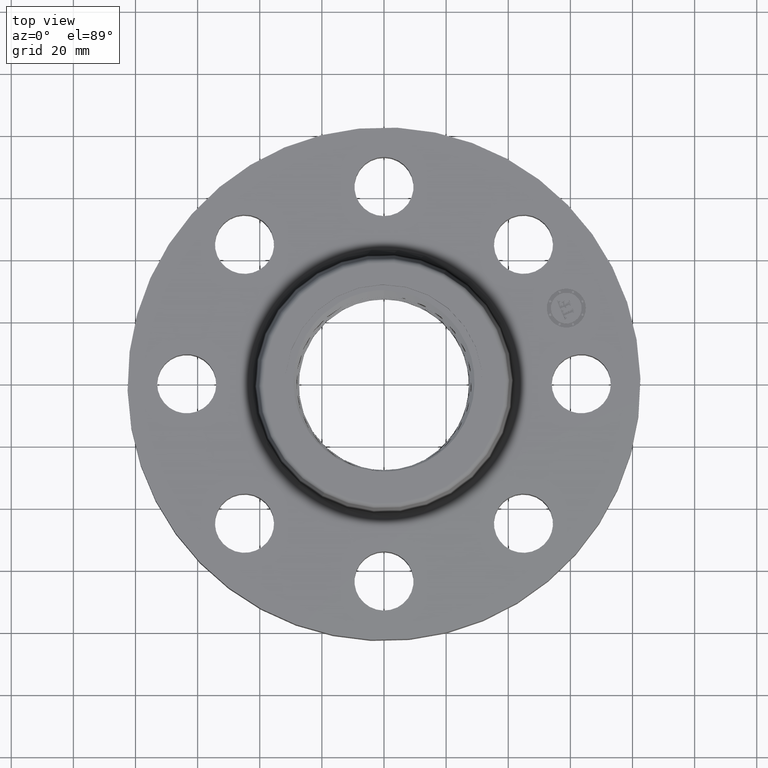
[diagram: clean part render]
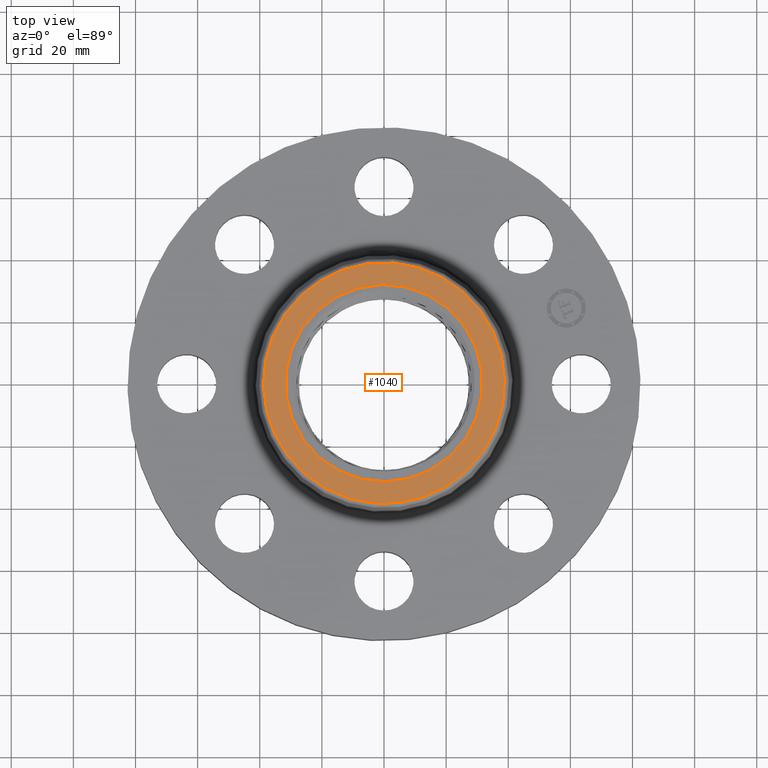
[diagram: same view with one face highlighted and labeled with its STEP entity id]
A machine part, top view. The second image highlights one B-rep face of the part: STEP entity #1040.
In plain terms, the highlighted planar face has unit normal (0, 0, -1).
Its self-contained STEP definition (entity closure, byte-faithful):
#461=AXIS2_PLACEMENT_3D('Circle Axis2P3D',#459,#460,$) ;
#487=AXIS2_PLACEMENT_3D('Circle Axis2P3D',#485,#486,$) ;
#697=AXIS2_PLACEMENT_3D('Circle Axis2P3D',#695,#696,$) ;
#716=AXIS2_PLACEMENT_3D('Circle Axis2P3D',#714,#715,$) ;
#1030=AXIS2_PLACEMENT_3D('Plane Axis2P3D',#1027,#1028,#1029) ;
#459=CARTESIAN_POINT('Axis2P3D Location',(0.,0.,1.25000000001)) ;
#463=CARTESIAN_POINT('Vertex',(-0.599281923258,1.09697820237,1.25000000001)) ;
#465=CARTESIAN_POINT('Vertex',(0.599281923258,-1.09697820237,1.25000000001)) ;
#485=CARTESIAN_POINT('Axis2P3D Location',(0.,0.,1.25000000001)) ;
#692=CARTESIAN_POINT('Vertex',(0.732116429449,1.34013013497,1.25000000001)) ;
#695=CARTESIAN_POINT('Axis2P3D Location',(0.,0.,1.25000000001)) ;
#699=CARTESIAN_POINT('Vertex',(-0.732116429449,-1.34013013497,1.25000000001)) ;
#714=CARTESIAN_POINT('Axis2P3D Location',(0.,0.,1.25000000001)) ;
#1027=CARTESIAN_POINT('Axis2P3D Location',(0.,1.52707015062,1.25000000001)) ;
#460=DIRECTION('Axis2P3D Direction',(0.,0.,0.0393700787402)) ;
#486=DIRECTION('Axis2P3D Direction',(0.,0.,0.0393700787402)) ;
#696=DIRECTION('Axis2P3D Direction',(0.,0.,-0.0393700787402)) ;
#715=DIRECTION('Axis2P3D Direction',(0.,0.,-0.0393700787402)) ;
#1028=DIRECTION('Axis2P3D Direction',(0.,0.,-0.0393700787402)) ;
#1029=DIRECTION('Axis2P3D XDirection',(0.0393700787402,0.,0.)) ;
#1033=ORIENTED_EDGE('',*,*,#701,.F.) ;
#1034=ORIENTED_EDGE('',*,*,#718,.F.) ;
#1037=ORIENTED_EDGE('',*,*,#467,.T.) ;
#1038=ORIENTED_EDGE('',*,*,#489,.T.) ;
#1039=FACE_BOUND('',#1036,.T.) ;
#1040=ADVANCED_FACE('PartBody',(#1035,#1039),#1031,.F.) ;
#462=CIRCLE('generated circle',#461,1.25000000001) ;
#488=CIRCLE('generated circle',#487,1.25000000001) ;
#698=CIRCLE('generated circle',#697,1.52707015062) ;
#717=CIRCLE('generated circle',#716,1.52707015062) ;
#467=EDGE_CURVE('',#464,#466,#462,.F.) ;
#489=EDGE_CURVE('',#466,#464,#488,.F.) ;
#701=EDGE_CURVE('',#693,#700,#698,.T.) ;
#718=EDGE_CURVE('',#700,#693,#717,.T.) ;
#1032=EDGE_LOOP('',(#1033,#1034)) ;
#1036=EDGE_LOOP('',(#1037,#1038)) ;
#1035=FACE_OUTER_BOUND('',#1032,.T.) ;
#1031=PLANE('',#1030) ;
#464=VERTEX_POINT('',#463) ;
#466=VERTEX_POINT('',#465) ;
#693=VERTEX_POINT('',#692) ;
#700=VERTEX_POINT('',#699) ;